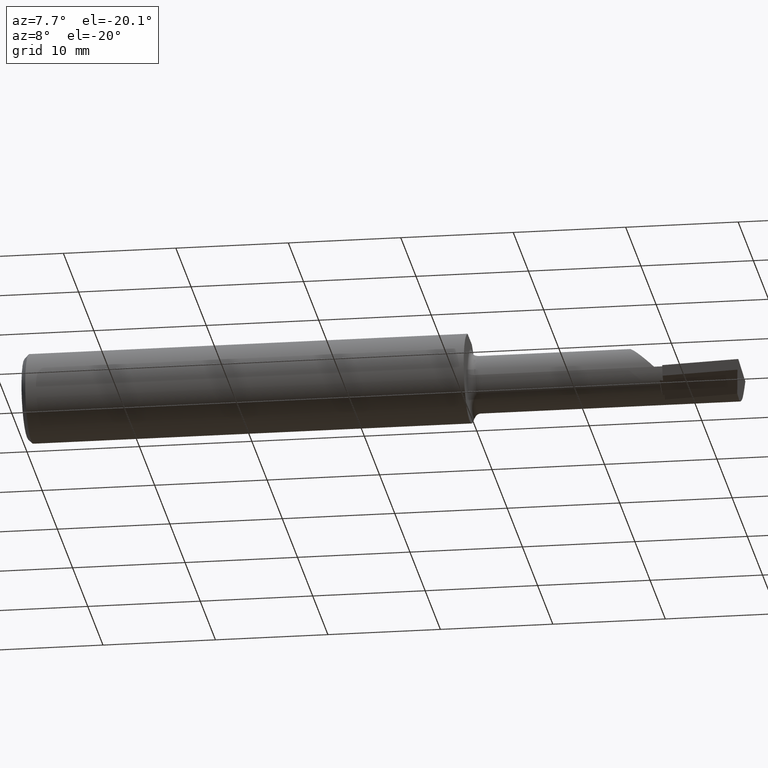
[diagram: clean part render]
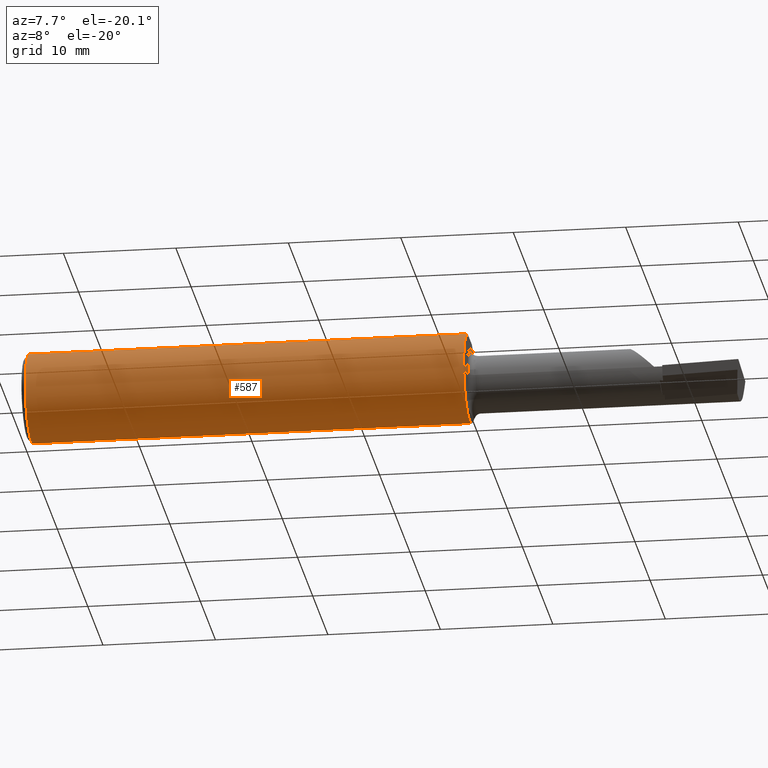
[diagram: same view with one face highlighted and labeled with its STEP entity id]
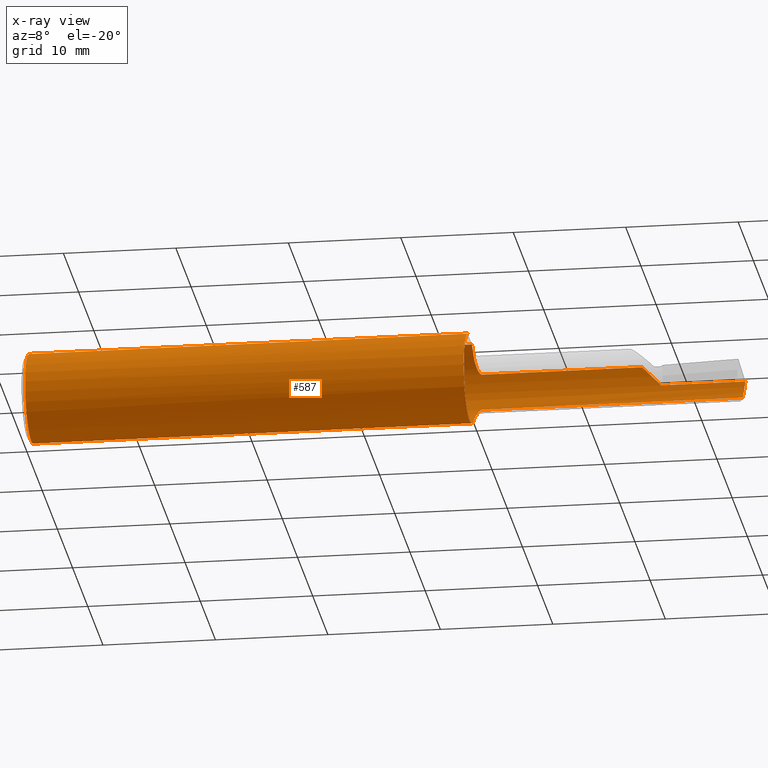
[diagram: x-ray of the same camera — body ghosted, the highlighted face saturated]
A machine part, auxiliary view. The second image highlights one B-rep face of the part: STEP entity #587.
The next image is the same camera in x-ray: the body ghosted, the highlighted face saturated — about 0% of this face is hidden behind the body in this view.
In plain terms, the highlighted cylindrical surface (partial cylindrical patch) has radius 3.9649 mm, axis along (-1, -0, -0).
Its self-contained STEP definition (entity closure, byte-faithful):
#9 = CARTESIAN_POINT ( 'NONE',  ( 1.571727793412432517, 0.1417279534125319984, 0.06543130843947221609 ) ) ;
#13 = EDGE_CURVE ( 'NONE', #674, #371, #94, .T. ) ;
#30 = VECTOR ( 'NONE', #487, 39.37007874015748143 ) ;
#31 = EDGE_CURVE ( 'NONE', #132, #194, #434, .T. ) ;
#34 = DIRECTION ( 'NONE',  ( -1.000000000000000000, -0.000000000000000000, -0.000000000000000000 ) ) ;
#41 = CARTESIAN_POINT ( 'NONE',  ( 0.01499999999999999424, 0.000000000000000000, 0.000000000000000000 ) ) ;
#45 = VERTEX_POINT ( 'NONE', #215 ) ;
#46 = EDGE_CURVE ( 'NONE', #194, #256, #694, .T. ) ;
#52 = CARTESIAN_POINT ( 'NONE',  ( 1.567803744158916324, 0.1404244429940951500, -0.06818941713933229787 ) ) ;
#58 = CARTESIAN_POINT ( 'NONE',  ( 1.550415155711666992, 0.1091772789608301680, 0.1117554983051645690 ) ) ;
#63 = CARTESIAN_POINT ( 'NONE',  ( 1.574999999999999956, 0.1419939393939388950, 0.06484544066771663617 ) ) ;
#69 = CARTESIAN_POINT ( 'NONE',  ( 1.574999999999999956, 0.1419939393939390337, -0.06484544066771648352 ) ) ;
#77 = EDGE_CURVE ( 'NONE', #371, #132, #332, .T. ) ;
#79 = EDGE_LOOP ( 'NONE', ( #297, #472, #569, #533, #293, #637, #84, #455, #580, #650, #156, #308, #528 ) ) ;
#84 = ORIENTED_EDGE ( 'NONE', *, *, #686, .F. ) ;
#86 = CARTESIAN_POINT ( 'NONE',  ( 1.550000000000000044, 0.09941818181818157241, 0.1203463132961163223 ) ) ;
#93 = DIRECTION ( 'NONE',  ( -1.000000000000000000, -0.000000000000000000, -0.000000000000000000 ) ) ;
#94 = CIRCLE ( 'NONE', #527, 0.1560999999999999888 ) ;
#98 = CARTESIAN_POINT ( 'NONE',  ( 1.550428134837082306, 0.1092850169809853472, -0.1116497630123365198 ) ) ;
#101 = CARTESIAN_POINT ( 'NONE',  ( 1.564650979716348811, 0.1387334617349064159, -0.07160083655282410697 ) ) ;
#102 = EDGE_CURVE ( 'NONE', #45, #614, #460, .T. ) ;
#118 = CARTESIAN_POINT ( 'NONE',  ( 1.902500000000000080, 0.1419939393939392558, -0.06484544066771610882 ) ) ;
#132 = VERTEX_POINT ( 'NONE', #63 ) ;
#133 = CARTESIAN_POINT ( 'NONE',  ( 0.000000000000000000, -0.05497272050753897882, 0.1461000000000000076 ) ) ;
#137 = DIRECTION ( 'NONE',  ( -1.000000000000000000, 3.414809992080329023E-18, -0.000000000000000000 ) ) ;
#152 = VERTEX_POINT ( 'NONE', #401 ) ;
#154 = CARTESIAN_POINT ( 'NONE',  ( 1.552063943834881554, 0.1181307192064760120, -0.1022448908112571081 ) ) ;
#155 = CARTESIAN_POINT ( 'NONE',  ( 0.01499999999999999944, -0.05497272050753897882, 0.1461000000000000076 ) ) ;
#156 = ORIENTED_EDGE ( 'NONE', *, *, #77, .T. ) ;
#161 = CARTESIAN_POINT ( 'NONE',  ( 1.902500000000000080, 0.1419939393939392558, 0.06484544066771610882 ) ) ;
#165 = CARTESIAN_POINT ( 'NONE',  ( 1.550000000000000044, 0.000000000000000000, 0.000000000000000000 ) ) ;
#166 = CARTESIAN_POINT ( 'NONE',  ( 1.574999999999999956, 0.1419939393939390337, -0.06484544066771648352 ) ) ;
#167 = DIRECTION ( 'NONE',  ( 0.000000000000000000, -1.000000000000000000, 0.000000000000000000 ) ) ;
#169 = CIRCLE ( 'NONE', #347, 0.1560999999999999888 ) ;
#171 = DIRECTION ( 'NONE',  ( -1.000000000000000000, 3.414809992080329023E-18, -0.000000000000000000 ) ) ;
#184 = CARTESIAN_POINT ( 'NONE',  ( 1.571725699135995802, 0.1417275062431943289, -0.06543227863119886745 ) ) ;
#189 = CARTESIAN_POINT ( 'NONE',  ( 0.000000000000000000, 0.000000000000000000, 0.000000000000000000 ) ) ;
#191 = VERTEX_POINT ( 'NONE', #223 ) ;
#194 = VERTEX_POINT ( 'NONE', #656 ) ;
#195 = DIRECTION ( 'NONE',  ( -1.000000000000000000, -0.000000000000000000, -0.000000000000000000 ) ) ;
#197 = EDGE_CURVE ( 'NONE', #272, #674, #339, .T. ) ;
#201 = CARTESIAN_POINT ( 'NONE',  ( 1.553264033160802970, 0.1222037927935205326, -0.09733121088759397188 ) ) ;
#215 = CARTESIAN_POINT ( 'NONE',  ( 1.550000000000000044, 0.09941818181818157241, -0.1203463132961163223 ) ) ;
#217 = DIRECTION ( 'NONE',  ( 0.000000000000000000, -1.000000000000000000, 0.000000000000000000 ) ) ;
#221 = CARTESIAN_POINT ( 'NONE',  ( 1.573328253254593578, 0.1419939393940946037, 0.06484544066737618628 ) ) ;
#223 = CARTESIAN_POINT ( 'NONE',  ( 2.493892030279779792, 0.1560999999999997945, 6.888552856243478599E-17 ) ) ;
#256 = VERTEX_POINT ( 'NONE', #478 ) ;
#260 = EDGE_CURVE ( 'NONE', #256, #191, #363, .T. ) ;
#272 = VERTEX_POINT ( 'NONE', #307 ) ;
#274 = CARTESIAN_POINT ( 'NONE',  ( 1.552040506864491354, 0.1180407066556266454, 0.1023492120876701161 ) ) ;
#282 = DIRECTION ( 'NONE',  ( 1.000000000000000000, 0.000000000000000000, 0.000000000000000000 ) ) ;
#293 = ORIENTED_EDGE ( 'NONE', *, *, #102, .T. ) ;
#297 = ORIENTED_EDGE ( 'NONE', *, *, #260, .T. ) ;
#304 = CARTESIAN_POINT ( 'NONE',  ( 2.486592206520481518, 0.1419939393939392558, -0.06484544066771610882 ) ) ;
#307 = CARTESIAN_POINT ( 'NONE',  ( 0.01499999999999999424, 0.05497272050753903433, 0.1460999999999999521 ) ) ;
#308 = ORIENTED_EDGE ( 'NONE', *, *, #31, .T. ) ;
#312 = AXIS2_PLACEMENT_3D ( 'NONE', #189, #34, #453 ) ;
#325 = CARTESIAN_POINT ( 'NONE',  ( 1.553262464810605481, 0.1222000088982458377, 0.09733625715976150505 ) ) ;
#328 = CARTESIAN_POINT ( 'NONE',  ( 1.568988484139259620, 0.1409410548628156068, 0.06710952210203097179 ) ) ;
#332 = B_SPLINE_CURVE_WITH_KNOTS ( 'NONE', 3,
 ( #543, #489, #58, #274, #325, #540, #647, #382, #597, #376, #328, #9, #221, #441 ),
 .UNSPECIFIED., .F., .F.,
 ( 4, 2, 2, 2, 2, 2, 4 ),
 ( 0.0001856976868807074985, 0.0006805519038525511231, 0.001175406120824394694, 0.001670260337796238481, 0.001917687446282160049, 0.002041401000525120725, 0.002165114554768081401 ),
 .UNSPECIFIED. ) ;
#334 = CARTESIAN_POINT ( 'NONE',  ( 2.488761500660856107, 0.1513252362624135372, -0.04441242967472200376 ) ) ;
#336 = CARTESIAN_POINT ( 'NONE',  ( 2.135154559332283597, 0.1419939393939393113, 0.06484544066771606718 ) ) ;
#337 = EDGE_CURVE ( 'NONE', #272, #152, #484, .T. ) ;
#339 = LINE ( 'NONE', #342, #579 ) ;
#342 = CARTESIAN_POINT ( 'NONE',  ( 0.000000000000000000, 0.05497272050753903433, 0.1460999999999999521 ) ) ;
#344 = CARTESIAN_POINT ( 'NONE',  ( 1.550000000000000044, 0.05497272050753902739, 0.1460999999999999521 ) ) ;
#346 = VECTOR ( 'NONE', #137, 39.37007874015748143 ) ;
#347 = AXIS2_PLACEMENT_3D ( 'NONE', #41, #93, #534 ) ;
#359 = FACE_OUTER_BOUND ( 'NONE', #79, .T. ) ;
#362 = CARTESIAN_POINT ( 'NONE',  ( 1.549999999999999378, 0.1044772303701482080, -0.1161670294028998712 ) ) ;
#363 = LINE ( 'NONE', #687, #446 ) ;
#366 = DIRECTION ( 'NONE',  ( -1.000000000000000000, -0.000000000000000000, -0.000000000000000000 ) ) ;
#371 = VERTEX_POINT ( 'NONE', #86 ) ;
#372 = CARTESIAN_POINT ( 'NONE',  ( 1.556590010709524519, 0.1296703571699484581, -0.08713627291424033694 ) ) ;
#376 = CARTESIAN_POINT ( 'NONE',  ( 1.567808428589329894, 0.1404263024719109298, 0.06818548243543511023 ) ) ;
#382 = CARTESIAN_POINT ( 'NONE',  ( 1.563017092274625375, 0.1374043365808042538, 0.07413505991998718681 ) ) ;
#383 = VERTEX_POINT ( 'NONE', #304 ) ;
#392 = LINE ( 'NONE', #118, #346 ) ;
#398 = B_SPLINE_CURVE_WITH_KNOTS ( 'NONE', 3,
 ( #69, #671, #184, #405, #52, #101, #577, #485, #372, #201, #154, #98, #362, #480 ),
 .UNSPECIFIED., .F., .F.,
 ( 4, 2, 2, 2, 2, 2, 4 ),
 ( 1.961289441070630364E-07, 0.0001258819157031976720, 0.0002515677024622882743, 0.0005029392759804704547, 0.001005682423016825491, 0.001508425570053180528, 0.002011168717089535565 ),
 .UNSPECIFIED. ) ;
#401 = CARTESIAN_POINT ( 'NONE',  ( 0.01499999999999999424, 0.000000000000000000, -0.1560999999999999888 ) ) ;
#405 = CARTESIAN_POINT ( 'NONE',  ( 1.568987086440955858, 0.1409404987250977015, -0.06711069163632760182 ) ) ;
#415 = DIRECTION ( 'NONE',  ( 0.000000000000000000, 0.000000000000000000, 1.000000000000000000 ) ) ;
#423 = DIRECTION ( 'NONE',  ( 1.000000000000000000, 0.000000000000000000, 0.000000000000000000 ) ) ;
#434 = LINE ( 'NONE', #161, #30 ) ;
#441 = CARTESIAN_POINT ( 'NONE',  ( 1.574999999999999956, 0.1419939393939388950, 0.06484544066771663617 ) ) ;
#442 = EDGE_CURVE ( 'NONE', #191, #383, #599, .T. ) ;
#446 = VECTOR ( 'NONE', #423, 39.37007874015748143 ) ;
#453 = DIRECTION ( 'NONE',  ( 0.000000000000000000, 0.000000000000000000, 1.000000000000000000 ) ) ;
#455 = ORIENTED_EDGE ( 'NONE', *, *, #337, .F. ) ;
#460 = CIRCLE ( 'NONE', #616, 0.1560999999999999888 ) ;
#462 = CYLINDRICAL_SURFACE ( 'NONE', #312, 0.1560999999999999888 ) ;
#472 = ORIENTED_EDGE ( 'NONE', *, *, #442, .T. ) ;
#473 = VECTOR ( 'NONE', #195, 39.37007874015748143 ) ;
#475 = VERTEX_POINT ( 'NONE', #155 ) ;
#478 = CARTESIAN_POINT ( 'NONE',  ( 2.200000000000000178, 0.1560999999999997667, 9.797174393178826150E-17 ) ) ;
#480 = CARTESIAN_POINT ( 'NONE',  ( 1.550000000000000044, 0.09941818181818157241, -0.1203463132961163223 ) ) ;
#484 = CIRCLE ( 'NONE', #545, 0.1560999999999999888 ) ;
#485 = CARTESIAN_POINT ( 'NONE',  ( 1.558682090340782755, 0.1330572531291638050, -0.08183785561185299984 ) ) ;
#487 = DIRECTION ( 'NONE',  ( 1.000000000000000000, -3.414809992080329023E-18, 0.000000000000000000 ) ) ;
#489 = CARTESIAN_POINT ( 'NONE',  ( 1.550000000000000044, 0.1044500923568686818, 0.1161894481365072923 ) ) ;
#494 = CARTESIAN_POINT ( 'NONE',  ( 2.177537118629004453, 0.1560999999999999888, 0.02246288137099531138 ) ) ;
#496 = CARTESIAN_POINT ( 'NONE',  ( 1.550000000000000044, 0.000000000000000000, 0.000000000000000000 ) ) ;
#498 = CARTESIAN_POINT ( 'NONE',  ( 2.486592206520481518, 0.1419939393939392558, -0.06484544066771610882 ) ) ;
#518 = VERTEX_POINT ( 'NONE', #166 ) ;
#522 = CARTESIAN_POINT ( 'NONE',  ( 1.550000000000000044, -0.05497272050753900657, 0.1461000000000000076 ) ) ;
#527 = AXIS2_PLACEMENT_3D ( 'NONE', #165, #592, #217 ) ;
#528 = ORIENTED_EDGE ( 'NONE', *, *, #46, .T. ) ;
#531 = EDGE_CURVE ( 'NONE', #383, #518, #392, .T. ) ;
#533 = ORIENTED_EDGE ( 'NONE', *, *, #678, .T. ) ;
#534 = DIRECTION ( 'NONE',  ( 0.000000000000000000, 0.000000000000000000, 1.000000000000000000 ) ) ;
#540 = CARTESIAN_POINT ( 'NONE',  ( 1.556590655429606063, 0.1296720675120674460, 0.08713405786343489390 ) ) ;
#543 = CARTESIAN_POINT ( 'NONE',  ( 1.550000000000000044, 0.09941818181818157241, 0.1203463132961163223 ) ) ;
#545 = AXIS2_PLACEMENT_3D ( 'NONE', #635, #366, #415 ) ;
#546 = CARTESIAN_POINT ( 'NONE',  ( 2.155587570325277369, 0.1513252362624134539, 0.04441242967472209396 ) ) ;
#550 = CARTESIAN_POINT ( 'NONE',  ( 2.493892030279779792, 0.1560999999999997945, 6.888552856243478599E-17 ) ) ;
#557 = EDGE_CURVE ( 'NONE', #614, #475, #627, .T. ) ;
#569 = ORIENTED_EDGE ( 'NONE', *, *, #531, .T. ) ;
#577 = CARTESIAN_POINT ( 'NONE',  ( 1.562996561902687986, 0.1373850824029522744, -0.07416982835688799847 ) ) ;
#579 = VECTOR ( 'NONE', #282, 39.37007874015748143 ) ;
#580 = ORIENTED_EDGE ( 'NONE', *, *, #197, .T. ) ;
#587 = ADVANCED_FACE ( 'NONE', ( #359 ), #462, .T. ) ;
#592 = DIRECTION ( 'NONE',  ( -1.000000000000000000, 3.414809992080329023E-18, -0.000000000000000000 ) ) ;
#597 = CARTESIAN_POINT ( 'NONE',  ( 1.564666516289592746, 0.1387430930441306554, 0.07158177069671557702 ) ) ;
#599 =( BOUNDED_CURVE ( )  B_SPLINE_CURVE ( 3, ( #550, #695, #334, #498 ),
 .UNSPECIFIED., .F., .F. ) 
 B_SPLINE_CURVE_WITH_KNOTS ( ( 4, 4 ),
 ( 4.934903206476686677, 5.363296268785054721 ),
 .UNSPECIFIED. ) 
 CURVE ( )  GEOMETRIC_REPRESENTATION_ITEM ( )  RATIONAL_B_SPLINE_CURVE ( ( 1.000000000000000000, 0.9847649979006014576, 0.9847649979006014576, 1.000000000000000000 ) ) 
 REPRESENTATION_ITEM ( '' )  );
#614 = VERTEX_POINT ( 'NONE', #522 ) ;
#616 = AXIS2_PLACEMENT_3D ( 'NONE', #496, #171, #167 ) ;
#627 = LINE ( 'NONE', #133, #473 ) ;
#635 = CARTESIAN_POINT ( 'NONE',  ( 0.01499999999999999424, 0.000000000000000000, 0.000000000000000000 ) ) ;
#637 = ORIENTED_EDGE ( 'NONE', *, *, #557, .T. ) ;
#647 = CARTESIAN_POINT ( 'NONE',  ( 1.558665904659250812, 0.1330436853938328778, 0.08186319721956698825 ) ) ;
#650 = ORIENTED_EDGE ( 'NONE', *, *, #13, .T. ) ;
#652 = CARTESIAN_POINT ( 'NONE',  ( 2.200000000000000178, 0.1560999999999997667, 9.797174393178826150E-17 ) ) ;
#656 = CARTESIAN_POINT ( 'NONE',  ( 2.135154559332283597, 0.1419939393939393113, 0.06484544066771606718 ) ) ;
#671 = CARTESIAN_POINT ( 'NONE',  ( 1.573318217257565266, 0.1419939393939390615, -0.06484544066771655291 ) ) ;
#674 = VERTEX_POINT ( 'NONE', #344 ) ;
#678 = EDGE_CURVE ( 'NONE', #518, #45, #398, .T. ) ;
#686 = EDGE_CURVE ( 'NONE', #152, #475, #169, .T. ) ;
#687 = CARTESIAN_POINT ( 'NONE',  ( 3.121792066109142165E-32, 0.1560999999999999333, 3.155924005931204823E-16 ) ) ;
#694 =( BOUNDED_CURVE ( )  B_SPLINE_CURVE ( 3, ( #336, #546, #494, #652 ),
 .UNSPECIFIED., .F., .F. ) 
 B_SPLINE_CURVE_WITH_KNOTS ( ( 4, 4 ),
 ( 1.142403264486529624, 1.570796326794896336 ),
 .UNSPECIFIED. ) 
 CURVE ( )  GEOMETRIC_REPRESENTATION_ITEM ( )  RATIONAL_B_SPLINE_CURVE ( ( 1.000000000000000000, 0.9847649979006014576, 0.9847649979006014576, 1.000000000000000000 ) ) 
 REPRESENTATION_ITEM ( '' )  );
#695 = CARTESIAN_POINT ( 'NONE',  ( 2.491232419704100920, 0.1561000000000000443, -0.02246288137099513443 ) ) ;